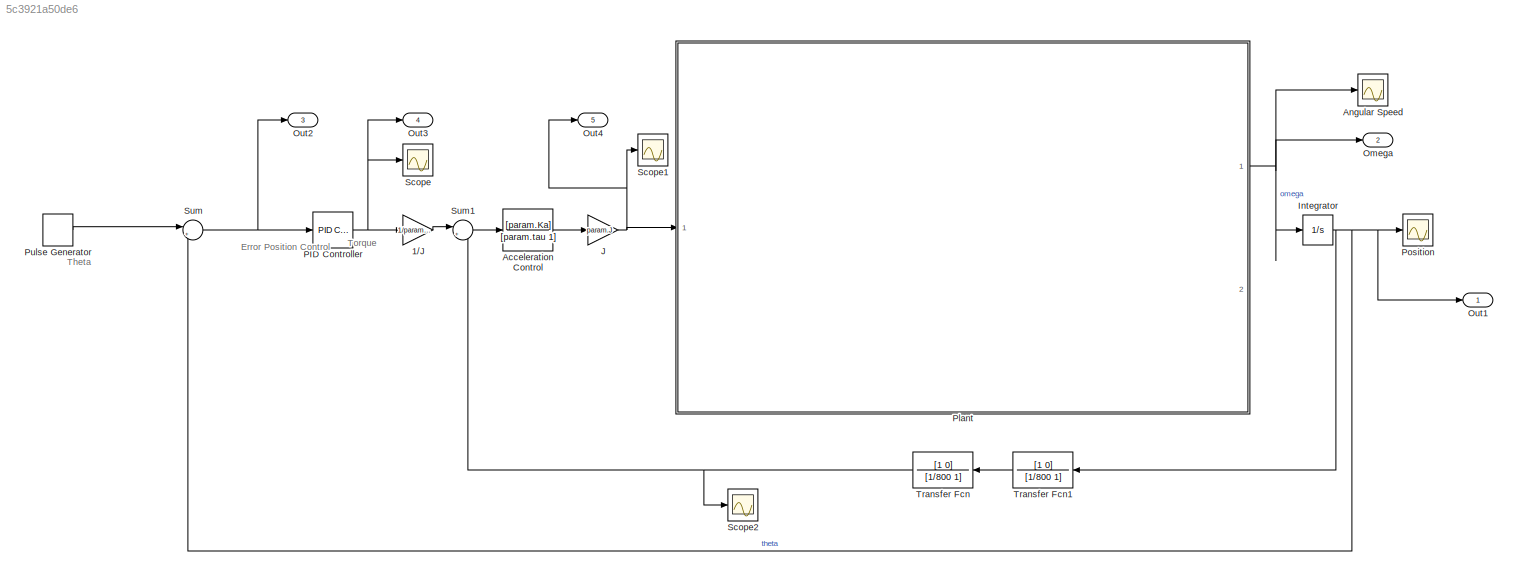
MODEL slx_5c3921a50de6
KIND model
CONFIG AbsTol = auto
CONFIG EnableMultiTasking = off
CONFIG FixedStep = auto
CONFIG MaxStep = auto
CONFIG MinStep = auto
CONFIG RelTol = 1e-3
CONFIG SampleTimeConstraint = Unconstrained
CONFIG SolverName = VariableStepAuto
CONFIG StartTime = 0.0
CONFIG StopTime = 3
BLOCK [Gain] 1//J
  Gain = 1/param.J
BLOCK [TransferFcn] Acceleration Control
  Denominator = [param.tau 1]
  Numerator = [param.Ka]
BLOCK [Scope] Angular Speed
  Floating = off
  NumInputPorts = 1
  Ports = [1]
  ScopeSpecificationString = Simulink.scopes.TimeScopeBlockCfg('CurrentConfiguration', extmgr.ConfigurationSet(extmgr.Configuration('Core','General UI',true),extmgr.Configuration('Core','Source UI',true),extmgr.Configuration('Sources','WiredSimulink',true,'DataLoggingVariableName','ScopeData1'),extmgr.Configuration('Visuals','Time Domain',true,'SerializedDisplays',{struct('MinYLimReal','-16.66629','MaxYLimReal','85.93646','YL...<+1475ch>
BLOCK [Integrator] Integrator
  Ports = [1, 1]
BLOCK [Gain] J
  Gain = param.J
BLOCK [Outport] Omega
  Port = 2
  SignalName = omega
BLOCK [Outport] Out1
  SignalName = theta
BLOCK [Outport] Out2
  Port = 3
  SignalName = error
BLOCK [Outport] Out3
  Port = 4
  SignalName = PID Torque
BLOCK [Outport] Out4
  Port = 5
  SignalName = Accel Torque
BLOCK [Reference] PID Controller  REF=slpidlib/PID Controller
  Ports = [1, 1]
  SourceBlock = slpidlib/PID Controller
  SourceProductBaseCode = SL
  SourceType = PID 1dof
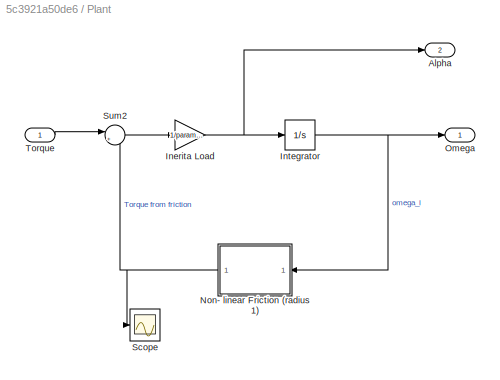
BLOCK [SubSystem] Plant
  Ports = [1, 2]
  RequestExecContextInheritance = off
BLOCK [Outport] Plant/Alpha
  Port = 2
BLOCK [Gain] Plant/Inerita Load
  Gain = 1/param.J
BLOCK [Integrator] Plant/Integrator
  Ports = [1, 1]
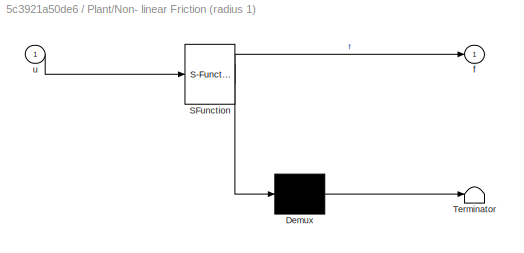
BLOCK [SubSystem] Plant/Non- linear Friction (radius 1)
  ErrorFcn = Stateflow.Translate.translate
  PermitHierarchicalResolution = ExplicitOnly
  Ports = [1, 1]
  RequestExecContextInheritance = off
  SFBlockType = MATLAB Function
  TreatAsAtomicUnit = on
BLOCK [Demux] Plant/Non- linear Friction (radius 1)/ Demux 
  Outputs = 1
  Ports = [1, 1]
BLOCK [S-Function] Plant/Non- linear Friction (radius 1)/ SFunction 
  EnableBusSupport = on
  FunctionName = sf_sfun
  Parameters = param
  PortCounts = [1 2]
  Ports = [1, 2]
  SFcnIsStateOwnerBlock = off
  SFunctionDeploymentMode = off
  Tag = Stateflow S-Function 2
BLOCK [Terminator] Plant/Non- linear Friction (radius 1)/ Terminator 
BLOCK [Outport] Plant/Non- linear Friction (radius 1)/f
BLOCK [Inport] Plant/Non- linear Friction (radius 1)/u
BLOCK [Outport] Plant/Omega
BLOCK [Scope] Plant/Scope
  Floating = off
  NumInputPorts = 1
  Ports = [1]
  ScopeSpecificationString = Simulink.scopes.TimeScopeBlockCfg('CurrentConfiguration', extmgr.ConfigurationSet(extmgr.Configuration('Core','General UI',true),extmgr.Configuration('Core','Source UI',true),extmgr.Configuration('Sources','WiredSimulink',true,'DataLoggingVariableName','ScopeData1'),extmgr.Configuration('Visuals','Time Domain',true,'SerializedDisplays',{struct('MinYLimReal','-0.15171','MaxYLimReal','0.15171','YLab...<+1379ch>
BLOCK [Sum] Plant/Sum2
  Inputs = |+-
  Ports = [2, 1]
BLOCK [Inport] Plant/Torque
BLOCK [Scope] Position
  Floating = off
  NumInputPorts = 1
  Ports = [1]
  ScopeSpecificationString = Simulink.scopes.TimeScopeBlockCfg('CurrentConfiguration', extmgr.ConfigurationSet(extmgr.Configuration('Core','General UI',true),extmgr.Configuration('Core','Source UI',true),extmgr.Configuration('Sources','WiredSimulink',true),extmgr.Configuration('Visuals','Time Domain',true,'SerializedDisplays',{struct('MinYLimReal','-0.12159','MaxYLimReal','1.09434','YLabelReal','','MinYLimMag','0.00000','MaxY...<+1453ch>
BLOCK [DiscretePulseGenerator] Pulse Generator
  Ports = [0, 1]
  PulseType = Time based
  PulseWidth = 50
BLOCK [Scope] Scope
  Floating = off
  NumInputPorts = 1
  Ports = [1]
  ScopeSpecificationString = Simulink.scopes.TimeScopeBlockCfg('CurrentConfiguration', extmgr.ConfigurationSet(extmgr.Configuration('Core','General UI',true),extmgr.Configuration('Core','Source UI',true),extmgr.Configuration('Sources','WiredSimulink',true,'DataLoggingVariableName','ScopeData1'),extmgr.Configuration('Visuals','Time Domain',true,'SerializedDisplays',{struct('MinYLimReal','-0.27465','MaxYLimReal','0.27493','YLab...<+1373ch>
BLOCK [Scope] Scope1
  Floating = off
  NumInputPorts = 1
  Ports = [1]
  ScopeSpecificationString = Simulink.scopes.TimeScopeBlockCfg('CurrentConfiguration', extmgr.ConfigurationSet(extmgr.Configuration('Core','General UI',true),extmgr.Configuration('Core','Source UI',true),extmgr.Configuration('Sources','WiredSimulink',true,'DataLoggingVariableName','ScopeData2'),extmgr.Configuration('Visuals','Time Domain',true,'SerializedDisplays',{struct('MinYLimReal','-0.31654','MaxYLimReal','0.774','YLabel...<+1455ch>
BLOCK [Scope] Scope2
  Floating = off
  NumInputPorts = 1
  Ports = [1]
  ScopeSpecificationString = Simulink.scopes.TimeScopeBlockCfg('CurrentConfiguration', extmgr.ConfigurationSet(extmgr.Configuration('Core','General UI',true),extmgr.Configuration('Core','Source UI',true),extmgr.Configuration('Sources','WiredSimulink',true,'DataLoggingVariableName','ScopeData1'),extmgr.Configuration('Visuals','Time Domain',true,'SerializedDisplays',{struct('MinYLimReal','-1044.90454','MaxYLimReal','1069.42636'...<+1498ch>
BLOCK [Sum] Sum
  Inputs = |+-
  Ports = [2, 1]
BLOCK [Sum] Sum1
  Inputs = |+-
  Ports = [2, 1]
BLOCK [TransferFcn] Transfer Fcn
  Denominator = [1/800 1]
  Numerator = [1 0]
BLOCK [TransferFcn] Transfer Fcn1
  Denominator = [1/800 1]
  Numerator = [1 0]
ANNOTATION (root): Error
ANNOTATION (root): Position Control
ANNOTATION (root): Theta
ANNOTATION (root): Torque
LINE 1//J:1 -> Sum1:1
LINE Acceleration Control:1 -> J:1
NET Integrator:1 -> Out1:1, Position:1, Sum:2, Transfer Fcn1:1
NET J:1 -> Out4:1, Plant:1, Scope1:1
NET PID Controller:1 -> 1//J:1, Out3:1, Scope:1
NET Plant/Inerita Load:1 -> Plant/Alpha:1, Plant/Integrator:1
NET Plant/Integrator:1 -> Plant/Non- linear Friction (radius 1):1, Plant/Omega:1
NET Plant/Non- linear Friction (radius 1):1 -> Plant/Scope:1, Plant/Sum2:2
LINE Plant/Sum2:1 -> Plant/Inerita Load:1
LINE Plant/Torque:1 -> Plant/Sum2:1
NET Plant:1 -> Angular Speed:1, Integrator:1, Omega:1
LINE Pulse Generator:1 -> Sum:1
LINE Sum1:1 -> Acceleration Control:1
NET Sum:1 -> Out2:1, PID Controller:1
LINE Transfer Fcn1:1 -> Transfer Fcn:1
NET Transfer Fcn:1 -> Scope2:1, Sum1:2
note: NET lines group one-source signal fan-out (src -> all destinations, sorted); 1:1 wires keep LINE
CHART Plant/Non- linear Friction (radius 1) states=1 transitions=1
  STATE_LABEL 'eML_blk_kernel()'
  STATE_LABEL 'SCRIPT:\nfunction f = friction_m(u, param)\n\n%FRICTION_M Nonlinear friction model with Stribeck, Coulomb and viscous\n\n% dissipation effects.\n\n% Output equation.\n\nf = param.g1*(tanh(param.g2*u)-tanh(param.g3*u)) ... % Stribeck effect.\n+ param.g4*tanh(param.g5*u) ... % Coulomb effect.\n+ param.g6*u; % Viscous dissipation term.\n\nend\n'
CHART  states=0 transitions=0
